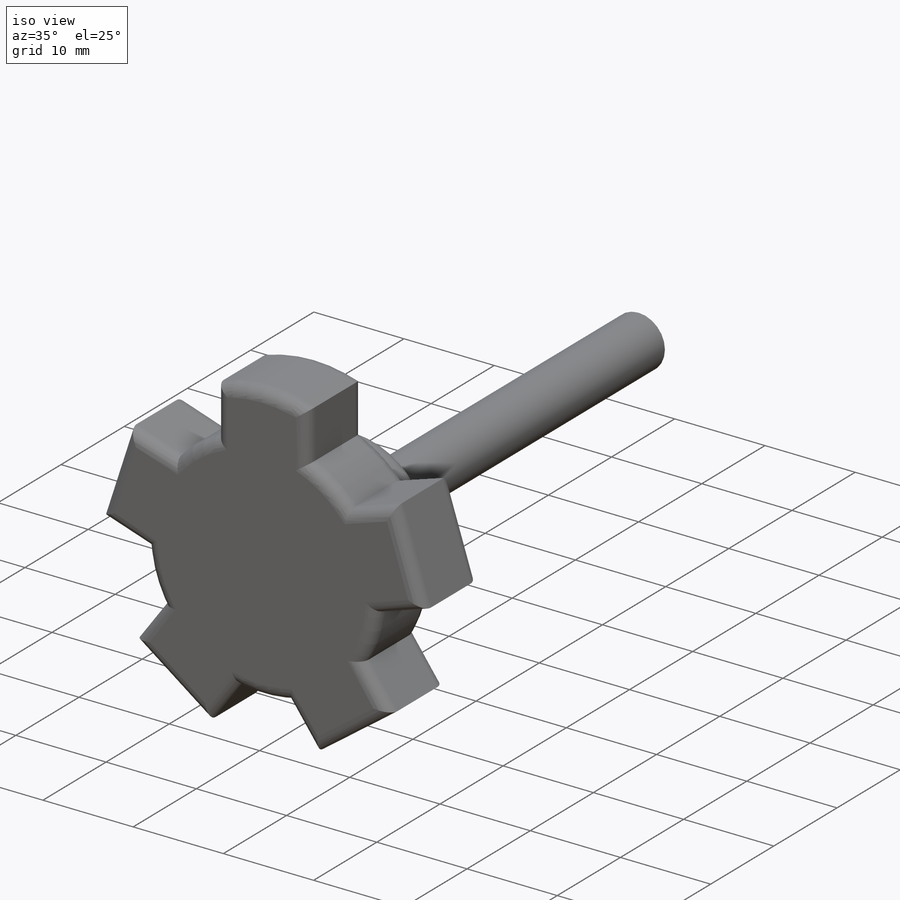
[diagram: iso view]
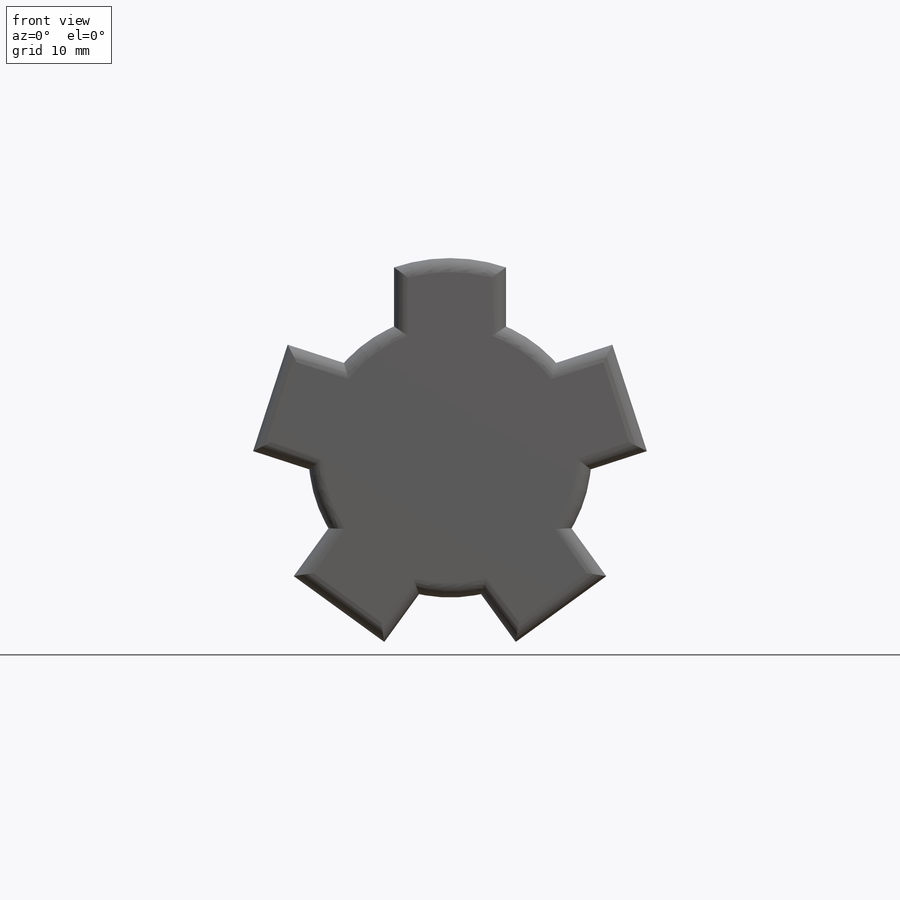
[diagram: front view]
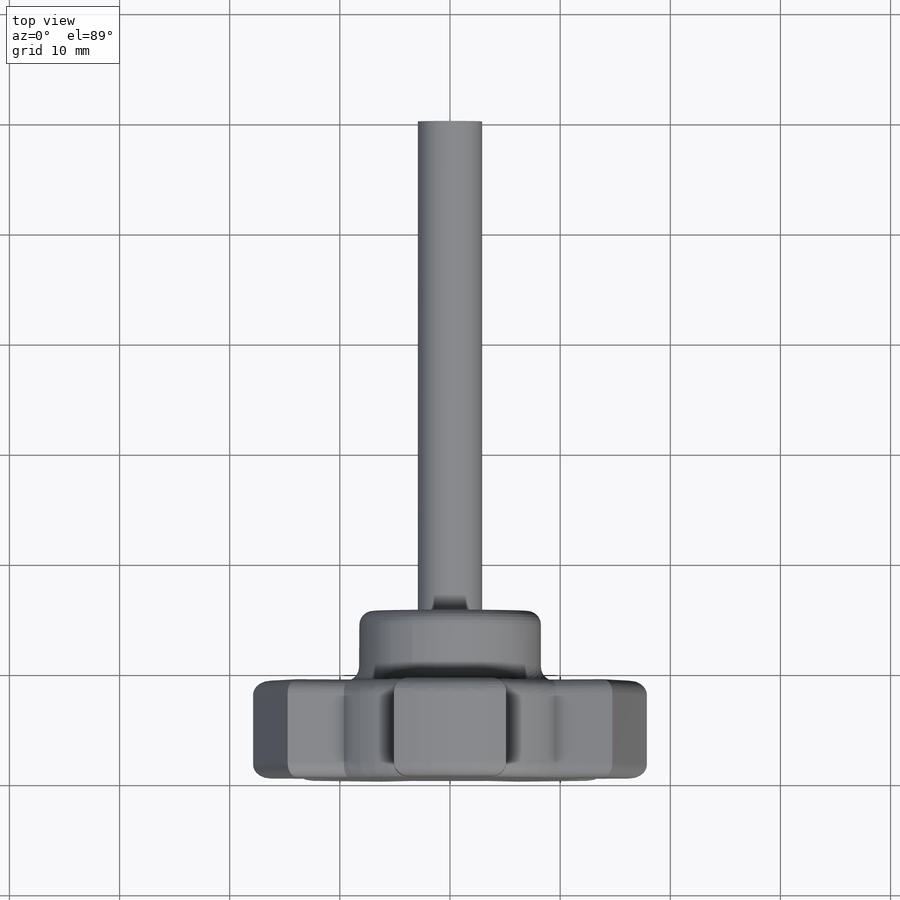
[diagram: top view]
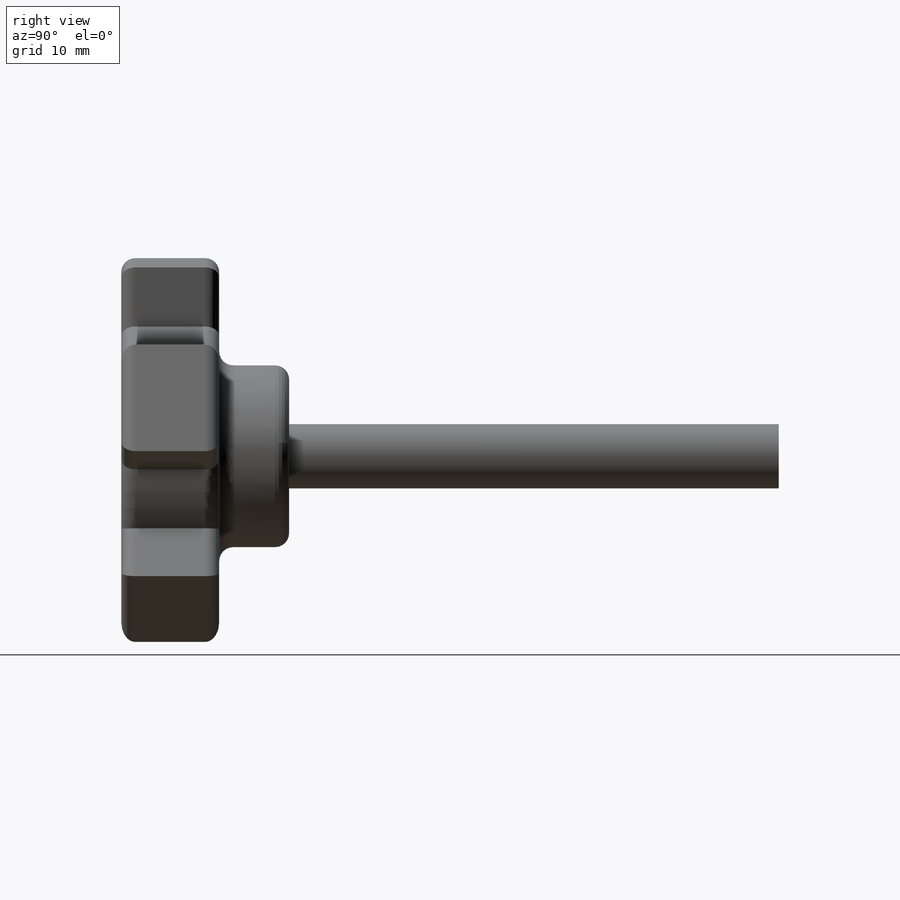
[diagram: right view]
SOLIDWORKS PART (.sldprt)
format: sldprt  version: not decoded by parser v0  size: 359,424 bytes
history: native  units: mm
features: sketch x6, extrude x5, material x1, fillet x1 (+11 scaffold rows collapsed)
feature tree (24):
  scaffold x11  (default folders/planes/origin — collapsed)
  material  "Material <not specified>"
  sketch  "Sketch1"  dims[D1=0.115mm]
  extrude  "Extrude1"  Depth=44.45mm
  sketch  "Sketch2"  dims[D1=~11.370714mm]
  extrude  "Extrude2"  Depth=6.35mm
  sketch  "Sketch3"  dims[D1=~18.604003mm]
  extrude  "Extrude3"  Depth=8.89mm
  sketch  "Sketch4"  dims[D1=5.588mm]
  sketch  "Sketch6"
  extrude  "Extrude6"  [1 undecoded]
  sketch  "Sketch7"
  extrude  "Extrude7"  [1 undecoded]
  fillet  "Fillet1"  Radius=1.27mm
decode coverage: 8 of 12 modeling features carry decoded parameters
note: ~ marks probable driven/reference dimensions
note: 2 parameter values undecoded
note: suppression state not decoded; provenance and decode notes live in map.json
